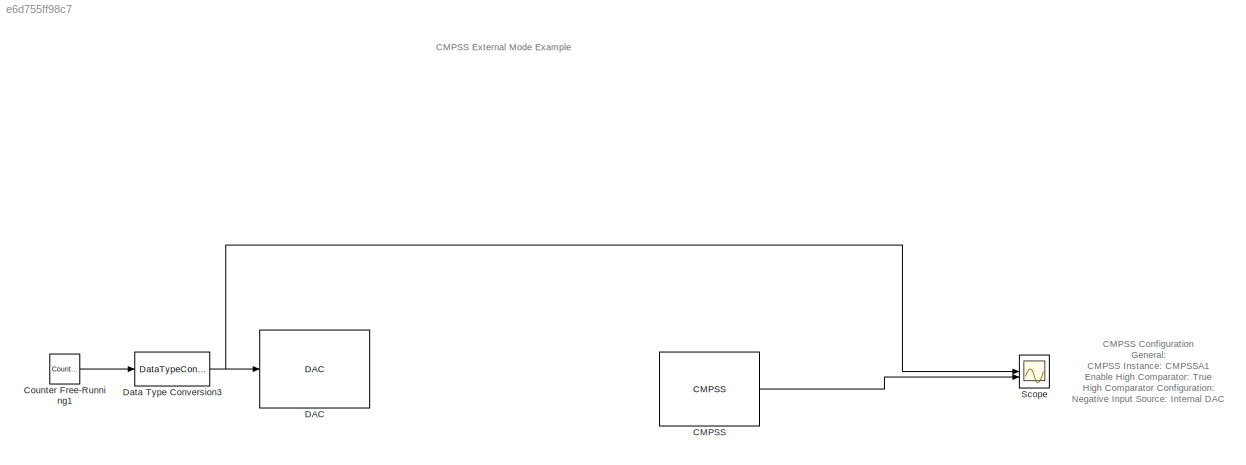
MODEL slx_e6d755ff98c7
KIND model
CONFIG AbsTol = auto
CONFIG EnableMultiTasking = off
CONFIG FixedStep = auto
CONFIG MaxStep = auto
CONFIG MinStep = auto
CONFIG RelTol = 1e-3
CONFIG SampleTimeConstraint = Unconstrained
CONFIG SolverName = FixedStepAuto
CONFIG StartTime = 0.0
CONFIG StopTime = inf
BLOCK [Reference] CMPSS  REF=peripheral_library_blocks_am263x/CMPSS
  SourceBlock = peripheral_library_blocks_am263x/CMPSS
  SourceType = CMPSS_AM263X
BLOCK [Reference] Counter Free-Running1  REF=simulink/Sources/Counter
Free-Running
  SourceBlock = simulink/Sources/Counter\nFree-Running
  SourceType = Counter Free-Running
BLOCK [Reference] DAC  REF=peripheral_library_blocks_am263x/DAC
  SourceBlock = peripheral_library_blocks_am263x/DAC
  SourceType = DAC_AM263X
BLOCK [DataTypeConversion] Data Type Conversion3
  OutDataTypeStr = uint16
  RndMeth = Floor
  SaturateOnIntegerOverflow = off
BLOCK [Scope] Scope
  Floating = off
  NumInputPorts = 2
  ScopeSpecificationString = Simulink.scopes.TimeScopeBlockCfg('CurrentConfiguration', extmgr.ConfigurationSet(extmgr.Configuration('Core','General UI',true),extmgr.Configuration('Core','Source UI',true),extmgr.Configuration('Sources','WiredSimulink',true),extmgr.Configuration('Visuals','Time Domain',true,'SerializedDisplays',{struct('MinYLimReal','-511.875','MaxYLimReal','4606.875','YLabelReal','DAC-A','MinYLimMag',' 0.00000...<+2258ch>
ANNOTATION (root): CMPSS Configuration General: CMPSS Instance: CMPSSA1 Enable High Comparator: True High Comparator Configuration: Negative Input Source: Internal DAC DAC Source: DAC module COMPH DAC Value: 2048 Digital Filter Sample Prescale: 0 Digital Filter Sample Window: 1 Digital Filter Sample Threshold: 1 DAC Configuration: DAC Value Load: DAC value updated from SYSCLK DAC reference voltage: VDDA is reference...<+65ch>
ANNOTATION (root): CMPSS External Mode Example
LINE CMPSS:1 -> Scope:2
LINE Counter Free-Running1:1 -> Data Type Conversion3:1
NET Data Type Conversion3:1 -> DAC:1, Scope:1
note: NET lines group one-source signal fan-out (src -> all destinations, sorted); 1:1 wires keep LINE
